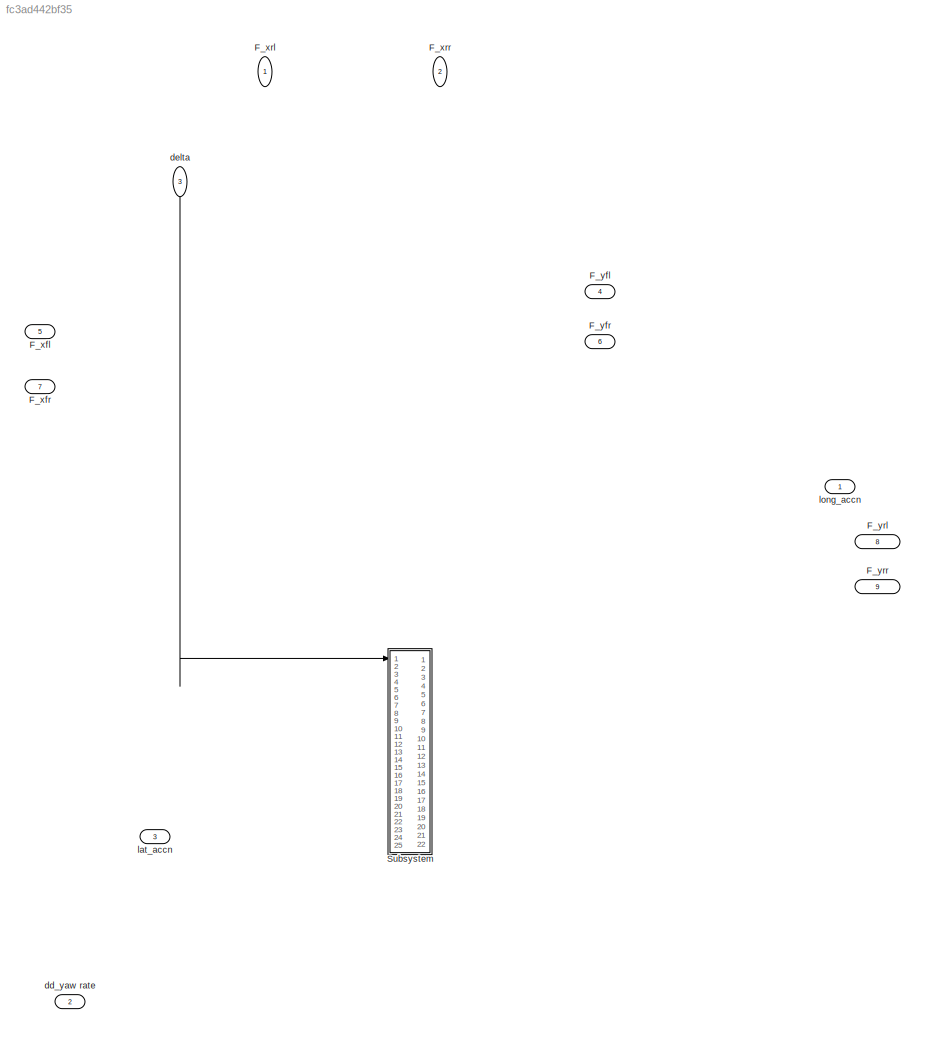
MODEL slx_fc3ad442bf35
KIND model
CONFIG AbsTol = auto
CONFIG FixedStep = auto
CONFIG MaxStep = auto
CONFIG MinStep = auto
CONFIG RelTol = 1e-3
CONFIG SampleTimeConstraint = Unconstrained
CONFIG Solver = ode45
CONFIG SolverMode = Auto
CONFIG SolverName = ode45
CONFIG StartTime = 0.0
CONFIG StopTime = 10.0
BLOCK [Inport] F_xfl
  IconDisplay = Port number
  Port = 5
BLOCK [Inport] F_xfr
  IconDisplay = Port number
  Port = 7
BLOCK [Inport] F_xrl
  IconDisplay = Port number
BLOCK [Inport] F_xrr
  IconDisplay = Port number
  Port = 2
BLOCK [Inport] F_yfl
  IconDisplay = Port number
  Port = 4
BLOCK [Inport] F_yfr
  IconDisplay = Port number
  Port = 6
BLOCK [Inport] F_yrl
  IconDisplay = Port number
  Port = 8
BLOCK [Inport] F_yrr
  IconDisplay = Port number
  Port = 9
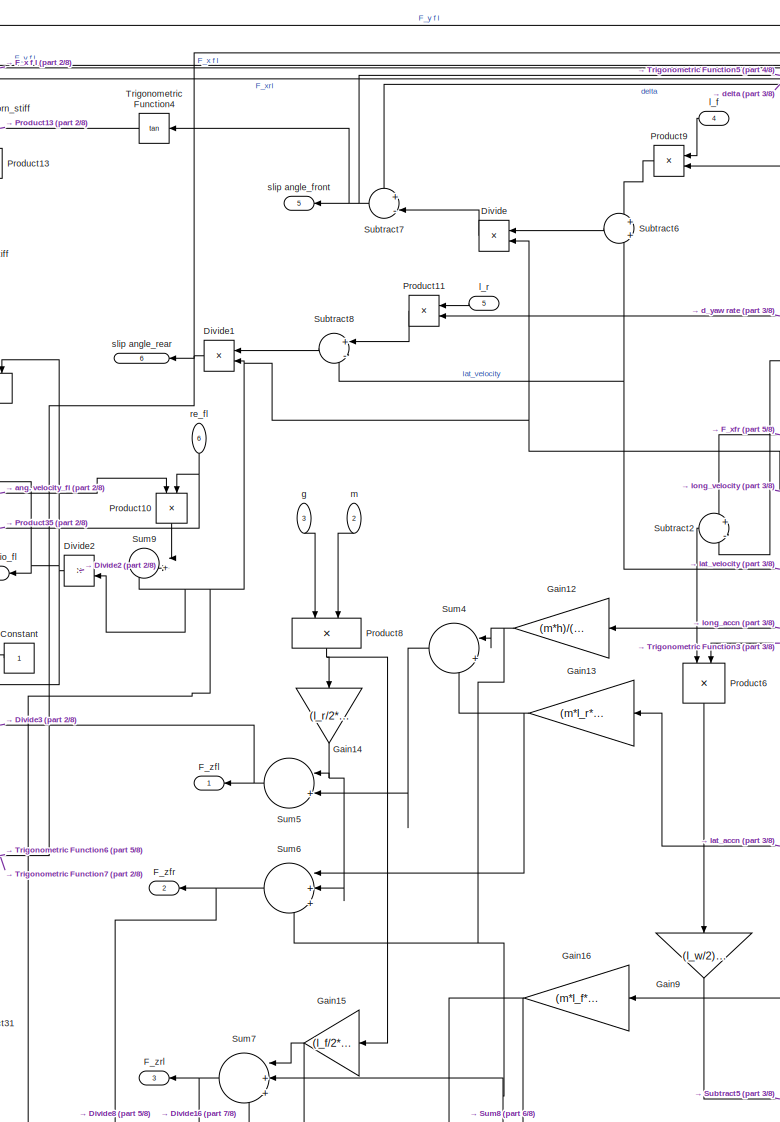
[diagram: Subsystem - part 1/8, top left region]
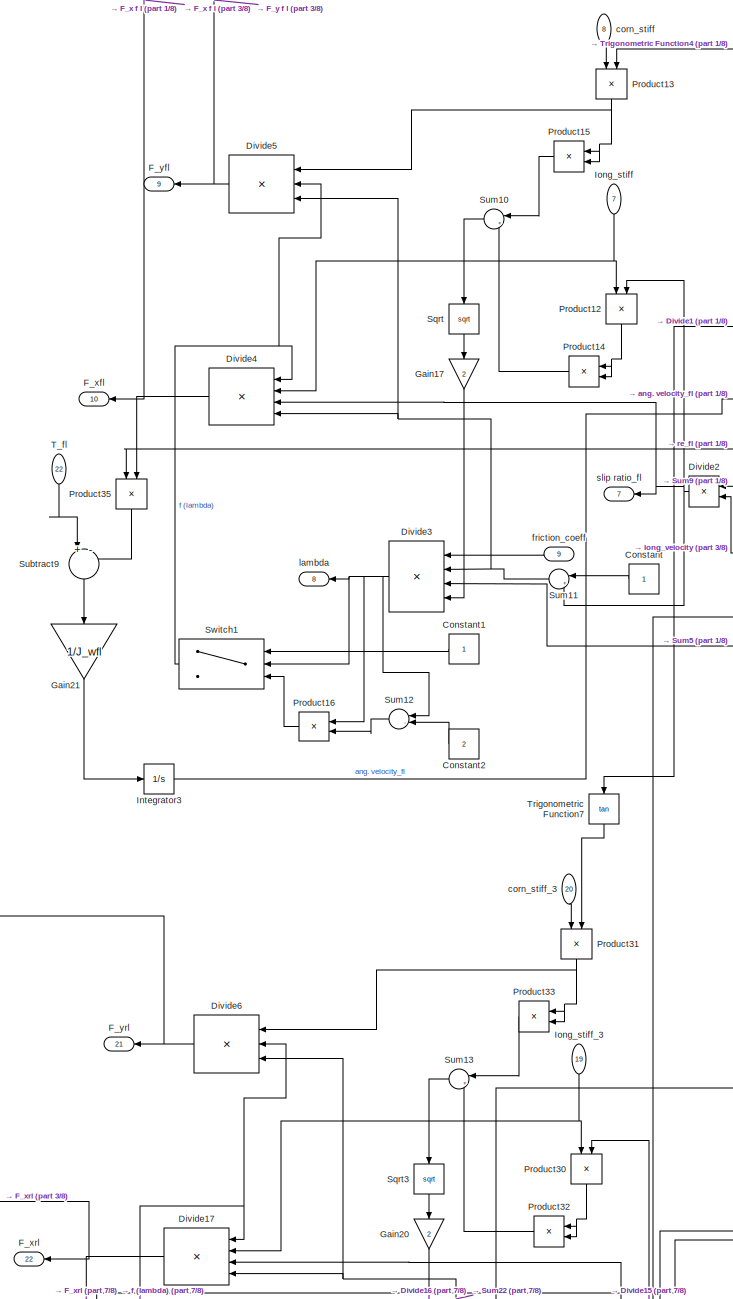
[diagram: Subsystem - part 2/8, middle left region]
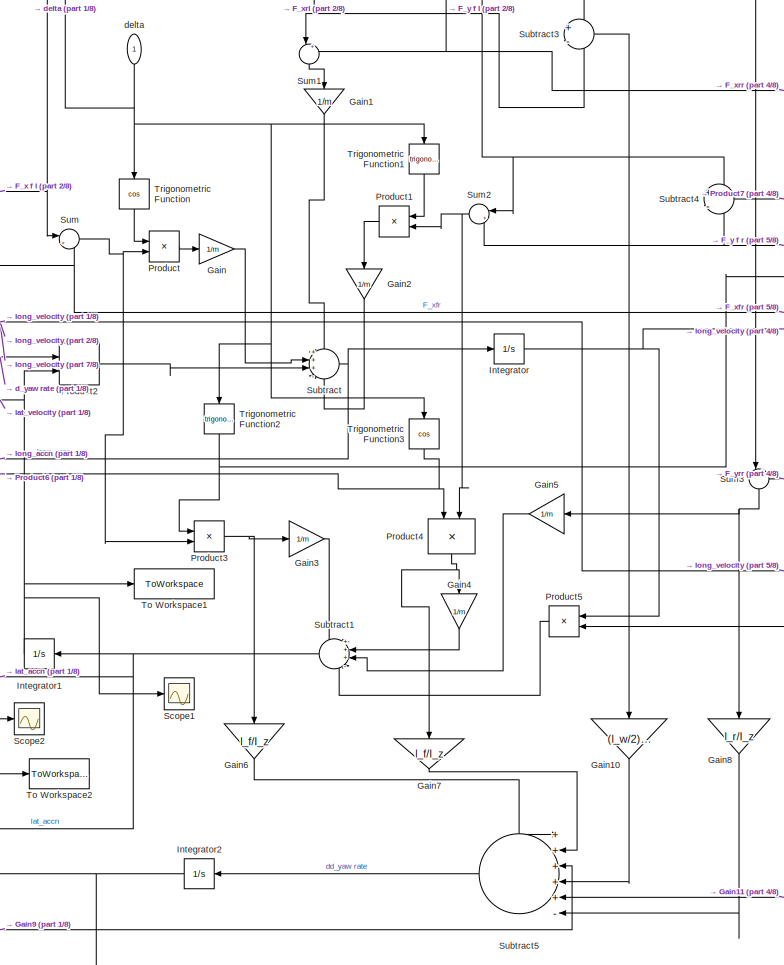
[diagram: Subsystem - part 3/8, central region]
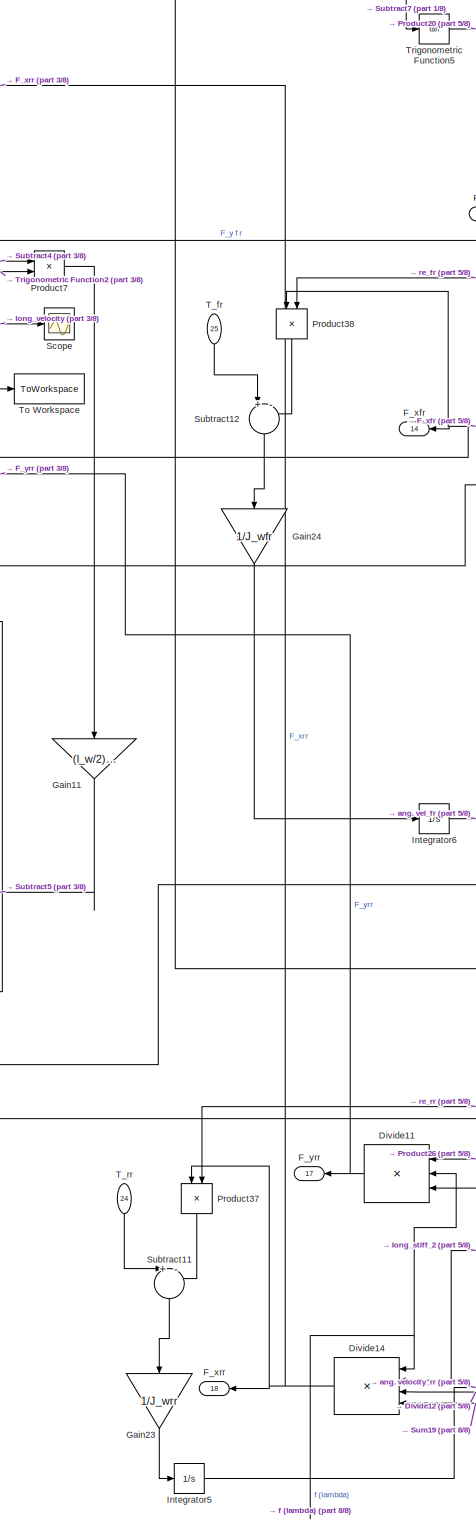
[diagram: Subsystem - part 4/8, right side, full height]
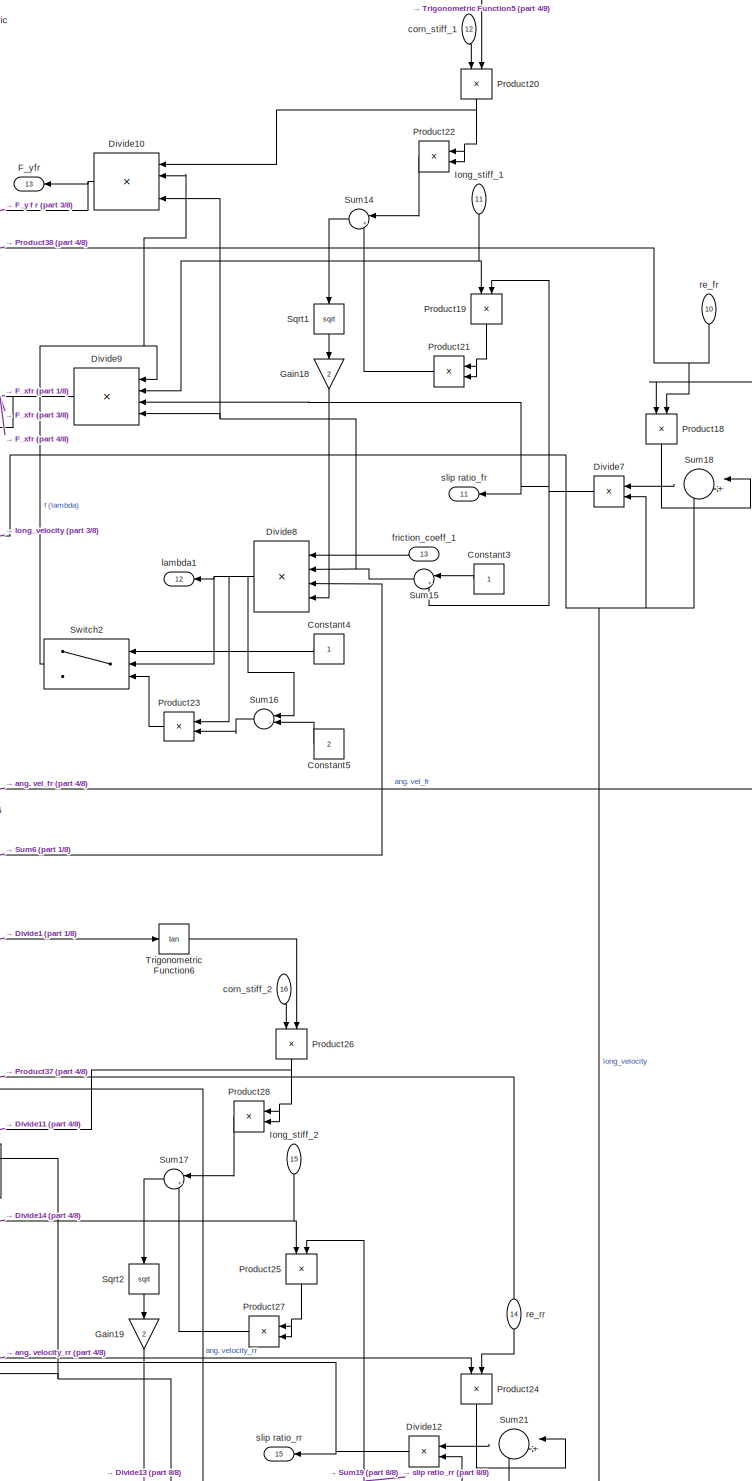
[diagram: Subsystem - part 5/8, right side, full height]
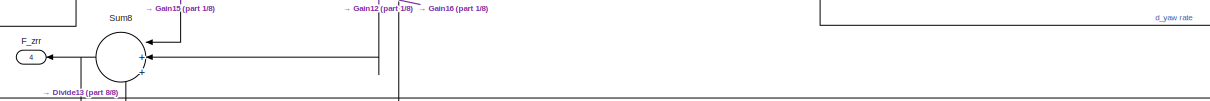
[diagram: Subsystem - part 6/8, central region]
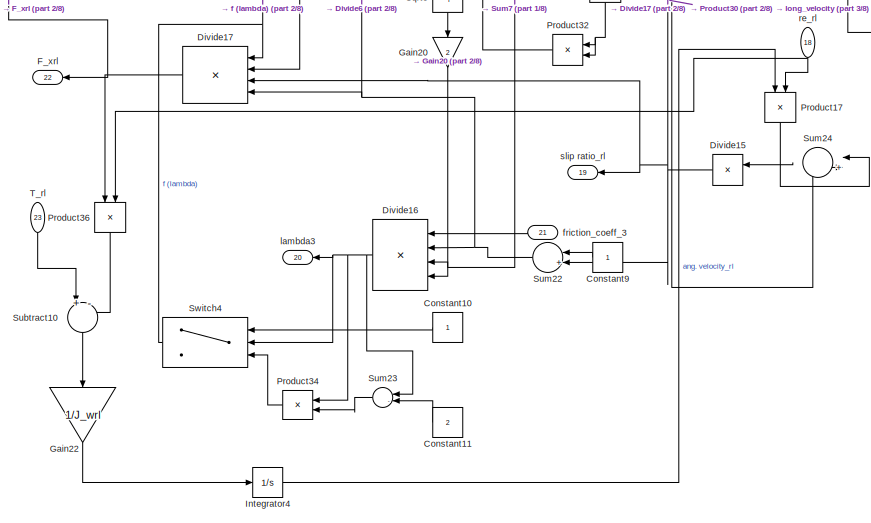
[diagram: Subsystem - part 7/8, bottom left region]
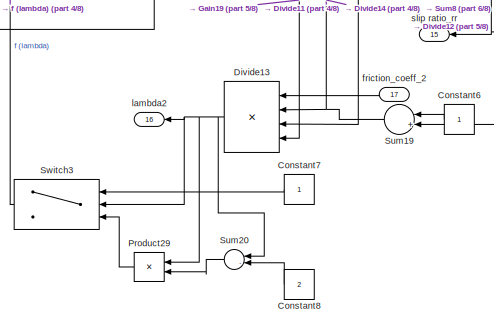
[diagram: Subsystem - part 8/8, bottom right region]
BLOCK [SubSystem] Subsystem
  Ports = [25, 22]
  RequestExecContextInheritance = off
BLOCK [Inport] Subsystem/      friction_coeff_3
  IconDisplay = Port number
  Port = 21
BLOCK [Constant] Subsystem/Constant
BLOCK [Constant] Subsystem/Constant1
BLOCK [Constant] Subsystem/Constant10
BLOCK [Constant] Subsystem/Constant11
  Value = 2
BLOCK [Constant] Subsystem/Constant2
  Value = 2
BLOCK [Constant] Subsystem/Constant3
BLOCK [Constant] Subsystem/Constant4
BLOCK [Constant] Subsystem/Constant5
  Value = 2
BLOCK [Constant] Subsystem/Constant6
BLOCK [Constant] Subsystem/Constant7
BLOCK [Constant] Subsystem/Constant8
  Value = 2
BLOCK [Constant] Subsystem/Constant9
BLOCK [Product] Subsystem/Divide
  InputSameDT = off
  Inputs = */
  OutDataTypeStr = Inherit: Inherit via internal rule
  Ports = [2, 1]
  RndMeth = Floor
  SaturateOnIntegerOverflow = off
BLOCK [Product] Subsystem/Divide1
  InputSameDT = off
  Inputs = */
  OutDataTypeStr = Inherit: Inherit via internal rule
  Ports = [2, 1]
  RndMeth = Floor
  SaturateOnIntegerOverflow = off
BLOCK [Product] Subsystem/Divide10
  InputSameDT = off
  Inputs = ***/
  OutDataTypeStr = Inherit: Inherit via internal rule
  Ports = [4, 1]
  RndMeth = Floor
  SaturateOnIntegerOverflow = off
BLOCK [Product] Subsystem/Divide11
  InputSameDT = off
  Inputs = **/
  OutDataTypeStr = Inherit: Inherit via internal rule
  Ports = [3, 1]
  RndMeth = Floor
  SaturateOnIntegerOverflow = off
BLOCK [Product] Subsystem/Divide12
  InputSameDT = off
  Inputs = */
  OutDataTypeStr = Inherit: Inherit via internal rule
  Ports = [2, 1]
  RndMeth = Floor
  SaturateOnIntegerOverflow = off
BLOCK [Product] Subsystem/Divide13
  InputSameDT = off
  Inputs = ***/
  OutDataTypeStr = Inherit: Inherit via internal rule
  Ports = [4, 1]
  RndMeth = Floor
  SaturateOnIntegerOverflow = off
BLOCK [Product] Subsystem/Divide14
  InputSameDT = off
  Inputs = ***/
  OutDataTypeStr = Inherit: Inherit via internal rule
  Ports = [4, 1]
  RndMeth = Floor
  SaturateOnIntegerOverflow = off
BLOCK [Product] Subsystem/Divide15
  InputSameDT = off
  Inputs = */
  OutDataTypeStr = Inherit: Inherit via internal rule
  Ports = [2, 1]
  RndMeth = Floor
  SaturateOnIntegerOverflow = off
BLOCK [Product] Subsystem/Divide16
  InputSameDT = off
  Inputs = ***/
  OutDataTypeStr = Inherit: Inherit via internal rule
  Ports = [4, 1]
  RndMeth = Floor
  SaturateOnIntegerOverflow = off
BLOCK [Product] Subsystem/Divide17
  InputSameDT = off
  Inputs = ***/
  OutDataTypeStr = Inherit: Inherit via internal rule
  Ports = [4, 1]
  RndMeth = Floor
  SaturateOnIntegerOverflow = off
BLOCK [Product] Subsystem/Divide2
  InputSameDT = off
  Inputs = */
  OutDataTypeStr = Inherit: Inherit via internal rule
  Ports = [2, 1]
  RndMeth = Floor
  SaturateOnIntegerOverflow = off
BLOCK [Product] Subsystem/Divide3
  InputSameDT = off
  Inputs = ***/
  OutDataTypeStr = Inherit: Inherit via internal rule
  Ports = [4, 1]
  RndMeth = Floor
  SaturateOnIntegerOverflow = off
BLOCK [Product] Subsystem/Divide4
  InputSameDT = off
  Inputs = ***/
  OutDataTypeStr = Inherit: Inherit via internal rule
  Ports = [4, 1]
  RndMeth = Floor
  SaturateOnIntegerOverflow = off
BLOCK [Product] Subsystem/Divide5
  InputSameDT = off
  Inputs = **/
  OutDataTypeStr = Inherit: Inherit via internal rule
  Ports = [3, 1]
  RndMeth = Floor
  SaturateOnIntegerOverflow = off
BLOCK [Product] Subsystem/Divide6
  InputSameDT = off
  Inputs = **/
  OutDataTypeStr = Inherit: Inherit via internal rule
  Ports = [3, 1]
  RndMeth = Floor
  SaturateOnIntegerOverflow = off
BLOCK [Product] Subsystem/Divide7
  InputSameDT = off
  Inputs = */
  OutDataTypeStr = Inherit: Inherit via internal rule
  Ports = [2, 1]
  RndMeth = Floor
  SaturateOnIntegerOverflow = off
BLOCK [Product] Subsystem/Divide8
  InputSameDT = off
  Inputs = ***/
  OutDataTypeStr = Inherit: Inherit via internal rule
  Ports = [4, 1]
  RndMeth = Floor
  SaturateOnIntegerOverflow = off
BLOCK [Product] Subsystem/Divide9
  InputSameDT = off
  Inputs = ***/
  OutDataTypeStr = Inherit: Inherit via internal rule
  Ports = [4, 1]
  RndMeth = Floor
  SaturateOnIntegerOverflow = off
BLOCK [Outport] Subsystem/F_xfl 
  IconDisplay = Port number
  Port = 10
BLOCK [Outport] Subsystem/F_xfr
  IconDisplay = Port number
  Port = 14
BLOCK [Outport] Subsystem/F_xrl 
  IconDisplay = Port number
  Port = 22
BLOCK [Outport] Subsystem/F_xrr
  IconDisplay = Port number
  Port = 18
BLOCK [Outport] Subsystem/F_yfl 
  IconDisplay = Port number
  Port = 9
BLOCK [Outport] Subsystem/F_yfr
  IconDisplay = Port number
  Port = 13
BLOCK [Outport] Subsystem/F_yrl
  IconDisplay = Port number
  Port = 21
BLOCK [Outport] Subsystem/F_yrr
  IconDisplay = Port number
  Port = 17
BLOCK [Outport] Subsystem/F_zfl
  IconDisplay = Port number
BLOCK [Outport] Subsystem/F_zfr
  IconDisplay = Port number
  Port = 2
BLOCK [Outport] Subsystem/F_zrl
  IconDisplay = Port number
  Port = 3
BLOCK [Outport] Subsystem/F_zrr
  IconDisplay = Port number
  Port = 4
BLOCK [Gain] Subsystem/Gain
  Gain = 1/m
  OutDataTypeStr = Inherit: Inherit via internal rule
  ParamDataTypeStr = Inherit: Inherit via internal rule
  SaturateOnIntegerOverflow = off
BLOCK [Gain] Subsystem/Gain1
  Gain = 1/m
  OutDataTypeStr = Inherit: Inherit via internal rule
  ParamDataTypeStr = Inherit: Inherit via internal rule
  SaturateOnIntegerOverflow = off
BLOCK [Gain] Subsystem/Gain10
  Gain = (l_w/2)/I_z
  OutDataTypeStr = Inherit: Inherit via internal rule
  ParamDataTypeStr = Inherit: Inherit via internal rule
  SaturateOnIntegerOverflow = off
BLOCK [Gain] Subsystem/Gain11
  Gain = (l_w/2)/I_z
  OutDataTypeStr = Inherit: Inherit via internal rule
  ParamDataTypeStr = Inherit: Inherit via internal rule
  SaturateOnIntegerOverflow = off
BLOCK [Gain] Subsystem/Gain12
  Gain = (m*h)/(2*l)
  OutDataTypeStr = Inherit: Inherit via internal rule
  ParamDataTypeStr = Inherit: Inherit via internal rule
  SaturateOnIntegerOverflow = off
BLOCK [Gain] Subsystem/Gain13
  Gain = (m*l_r*h)/(l*l_w)
  OutDataTypeStr = Inherit: Inherit via internal rule
  ParamDataTypeStr = Inherit: Inherit via internal rule
  SaturateOnIntegerOverflow = off
BLOCK [Gain] Subsystem/Gain14
  Gain = (l_r/2*l)
  OutDataTypeStr = Inherit: Inherit via internal rule
  ParamDataTypeStr = Inherit: Inherit via internal rule
  SaturateOnIntegerOverflow = off
BLOCK [Gain] Subsystem/Gain15
  Gain = (l_f/2*l)
  OutDataTypeStr = Inherit: Inherit via internal rule
  ParamDataTypeStr = Inherit: Inherit via internal rule
  SaturateOnIntegerOverflow = off
BLOCK [Gain] Subsystem/Gain16
  Gain = (m*l_f*h)/(l*l_w)
  OutDataTypeStr = Inherit: Inherit via internal rule
  ParamDataTypeStr = Inherit: Inherit via internal rule
  SaturateOnIntegerOverflow = off
BLOCK [Gain] Subsystem/Gain17
  Gain = 2
  OutDataTypeStr = Inherit: Inherit via internal rule
  ParamDataTypeStr = Inherit: Inherit via internal rule
  SaturateOnIntegerOverflow = off
BLOCK [Gain] Subsystem/Gain18
  Gain = 2
  OutDataTypeStr = Inherit: Inherit via internal rule
  ParamDataTypeStr = Inherit: Inherit via internal rule
  SaturateOnIntegerOverflow = off
BLOCK [Gain] Subsystem/Gain19
  Gain = 2
  OutDataTypeStr = Inherit: Inherit via internal rule
  ParamDataTypeStr = Inherit: Inherit via internal rule
  SaturateOnIntegerOverflow = off
BLOCK [Gain] Subsystem/Gain2
  Gain = 1/m
  OutDataTypeStr = Inherit: Inherit via internal rule
  ParamDataTypeStr = Inherit: Inherit via internal rule
  SaturateOnIntegerOverflow = off
BLOCK [Gain] Subsystem/Gain20
  Gain = 2
  OutDataTypeStr = Inherit: Inherit via internal rule
  ParamDataTypeStr = Inherit: Inherit via internal rule
  SaturateOnIntegerOverflow = off
BLOCK [Gain] Subsystem/Gain21
  Gain = 1/J_wfl
  OutDataTypeStr = Inherit: Inherit via internal rule
  ParamDataTypeStr = Inherit: Inherit via internal rule
  SaturateOnIntegerOverflow = off
BLOCK [Gain] Subsystem/Gain22
  Gain = 1/J_wrl
  OutDataTypeStr = Inherit: Inherit via internal rule
  ParamDataTypeStr = Inherit: Inherit via internal rule
  SaturateOnIntegerOverflow = off
BLOCK [Gain] Subsystem/Gain23
  Gain = 1/J_wrr
  OutDataTypeStr = Inherit: Inherit via internal rule
  ParamDataTypeStr = Inherit: Inherit via internal rule
  SaturateOnIntegerOverflow = off
BLOCK [Gain] Subsystem/Gain24
  Gain = 1/J_wfr
  OutDataTypeStr = Inherit: Inherit via internal rule
  ParamDataTypeStr = Inherit: Inherit via internal rule
  SaturateOnIntegerOverflow = off
BLOCK [Gain] Subsystem/Gain3
  Gain = 1/m
  OutDataTypeStr = Inherit: Inherit via internal rule
  ParamDataTypeStr = Inherit: Inherit via internal rule
  SaturateOnIntegerOverflow = off
BLOCK [Gain] Subsystem/Gain4
  Gain = 1/m
  OutDataTypeStr = Inherit: Inherit via internal rule
  ParamDataTypeStr = Inherit: Inherit via internal rule
  SaturateOnIntegerOverflow = off
BLOCK [Gain] Subsystem/Gain5
  Gain = 1/m
  OutDataTypeStr = Inherit: Inherit via internal rule
  ParamDataTypeStr = Inherit: Inherit via internal rule
  SaturateOnIntegerOverflow = off
BLOCK [Gain] Subsystem/Gain6
  Gain = l_f/I_z
  OutDataTypeStr = Inherit: Inherit via internal rule
  ParamDataTypeStr = Inherit: Inherit via internal rule
  SaturateOnIntegerOverflow = off
BLOCK [Gain] Subsystem/Gain7
  Gain = l_f/I_z
  OutDataTypeStr = Inherit: Inherit via internal rule
  ParamDataTypeStr = Inherit: Inherit via internal rule
  SaturateOnIntegerOverflow = off
BLOCK [Gain] Subsystem/Gain8
  Gain = l_r/I_z
  OutDataTypeStr = Inherit: Inherit via internal rule
  ParamDataTypeStr = Inherit: Inherit via internal rule
  SaturateOnIntegerOverflow = off
BLOCK [Gain] Subsystem/Gain9
  Gain = (l_w/2)/I_z
  OutDataTypeStr = Inherit: Inherit via internal rule
  ParamDataTypeStr = Inherit: Inherit via internal rule
  SaturateOnIntegerOverflow = off
BLOCK [Integrator] Subsystem/Integrator
  Ports = [1, 1]
BLOCK [Integrator] Subsystem/Integrator1
  Ports = [1, 1]
BLOCK [Integrator] Subsystem/Integrator2
  Ports = [1, 1]
BLOCK [Integrator] Subsystem/Integrator3
  Ports = [1, 1]
BLOCK [Integrator] Subsystem/Integrator4
  Ports = [1, 1]
BLOCK [Integrator] Subsystem/Integrator5
  Ports = [1, 1]
BLOCK [Integrator] Subsystem/Integrator6
  Ports = [1, 1]
BLOCK [Inport] Subsystem/Iong_stiff 
  IconDisplay = Port number
  Port = 7
BLOCK [Inport] Subsystem/Iong_stiff_1
  IconDisplay = Port number
  Port = 11
BLOCK [Inport] Subsystem/Iong_stiff_2
  IconDisplay = Port number
  Port = 15
BLOCK [Inport] Subsystem/Iong_stiff_3
  IconDisplay = Port number
  Port = 19
BLOCK [Product] Subsystem/Product
  InputSameDT = off
  OutDataTypeStr = Inherit: Inherit via internal rule
  Ports = [2, 1]
  RndMeth = Floor
  SaturateOnIntegerOverflow = off
BLOCK [Product] Subsystem/Product1
  InputSameDT = off
  OutDataTypeStr = Inherit: Inherit via internal rule
  Ports = [2, 1]
  RndMeth = Floor
  SaturateOnIntegerOverflow = off
BLOCK [Product] Subsystem/Product10
  InputSameDT = off
  OutDataTypeStr = Inherit: Inherit via internal rule
  Ports = [2, 1]
  RndMeth = Floor
  SaturateOnIntegerOverflow = off
BLOCK [Product] Subsystem/Product11
  InputSameDT = off
  OutDataTypeStr = Inherit: Inherit via internal rule
  Ports = [2, 1]
  RndMeth = Floor
  SaturateOnIntegerOverflow = off
BLOCK [Product] Subsystem/Product12
  InputSameDT = off
  OutDataTypeStr = Inherit: Inherit via internal rule
  Ports = [2, 1]
  RndMeth = Floor
  SaturateOnIntegerOverflow = off
BLOCK [Product] Subsystem/Product13
  InputSameDT = off
  OutDataTypeStr = Inherit: Inherit via internal rule
  Ports = [2, 1]
  RndMeth = Floor
  SaturateOnIntegerOverflow = off
BLOCK [Product] Subsystem/Product14
  InputSameDT = off
  OutDataTypeStr = Inherit: Inherit via internal rule
  Ports = [2, 1]
  RndMeth = Floor
  SaturateOnIntegerOverflow = off
BLOCK [Product] Subsystem/Product15
  InputSameDT = off
  OutDataTypeStr = Inherit: Inherit via internal rule
  Ports = [2, 1]
  RndMeth = Floor
  SaturateOnIntegerOverflow = off
BLOCK [Product] Subsystem/Product16
  InputSameDT = off
  OutDataTypeStr = Inherit: Inherit via internal rule
  Ports = [2, 1]
  RndMeth = Floor
  SaturateOnIntegerOverflow = off
BLOCK [Product] Subsystem/Product17
  InputSameDT = off
  OutDataTypeStr = Inherit: Inherit via internal rule
  Ports = [2, 1]
  RndMeth = Floor
  SaturateOnIntegerOverflow = off
BLOCK [Product] Subsystem/Product18
  InputSameDT = off
  OutDataTypeStr = Inherit: Inherit via internal rule
  Ports = [2, 1]
  RndMeth = Floor
  SaturateOnIntegerOverflow = off
BLOCK [Product] Subsystem/Product19
  InputSameDT = off
  OutDataTypeStr = Inherit: Inherit via internal rule
  Ports = [2, 1]
  RndMeth = Floor
  SaturateOnIntegerOverflow = off
BLOCK [Product] Subsystem/Product2
  InputSameDT = off
  OutDataTypeStr = Inherit: Inherit via internal rule
  Ports = [2, 1]
  RndMeth = Floor
  SaturateOnIntegerOverflow = off
BLOCK [Product] Subsystem/Product20
  InputSameDT = off
  OutDataTypeStr = Inherit: Inherit via internal rule
  Ports = [2, 1]
  RndMeth = Floor
  SaturateOnIntegerOverflow = off
BLOCK [Product] Subsystem/Product21
  InputSameDT = off
  OutDataTypeStr = Inherit: Inherit via internal rule
  Ports = [2, 1]
  RndMeth = Floor
  SaturateOnIntegerOverflow = off
BLOCK [Product] Subsystem/Product22
  InputSameDT = off
  OutDataTypeStr = Inherit: Inherit via internal rule
  Ports = [2, 1]
  RndMeth = Floor
  SaturateOnIntegerOverflow = off
BLOCK [Product] Subsystem/Product23
  InputSameDT = off
  OutDataTypeStr = Inherit: Inherit via internal rule
  Ports = [2, 1]
  RndMeth = Floor
  SaturateOnIntegerOverflow = off
BLOCK [Product] Subsystem/Product24
  InputSameDT = off
  OutDataTypeStr = Inherit: Inherit via internal rule
  Ports = [2, 1]
  RndMeth = Floor
  SaturateOnIntegerOverflow = off
BLOCK [Product] Subsystem/Product25
  InputSameDT = off
  OutDataTypeStr = Inherit: Inherit via internal rule
  Ports = [2, 1]
  RndMeth = Floor
  SaturateOnIntegerOverflow = off
BLOCK [Product] Subsystem/Product26
  InputSameDT = off
  OutDataTypeStr = Inherit: Inherit via internal rule
  Ports = [2, 1]
  RndMeth = Floor
  SaturateOnIntegerOverflow = off
BLOCK [Product] Subsystem/Product27
  InputSameDT = off
  OutDataTypeStr = Inherit: Inherit via internal rule
  Ports = [2, 1]
  RndMeth = Floor
  SaturateOnIntegerOverflow = off
BLOCK [Product] Subsystem/Product28
  InputSameDT = off
  OutDataTypeStr = Inherit: Inherit via internal rule
  Ports = [2, 1]
  RndMeth = Floor
  SaturateOnIntegerOverflow = off
BLOCK [Product] Subsystem/Product29
  InputSameDT = off
  OutDataTypeStr = Inherit: Inherit via internal rule
  Ports = [2, 1]
  RndMeth = Floor
  SaturateOnIntegerOverflow = off
BLOCK [Product] Subsystem/Product3
  InputSameDT = off
  OutDataTypeStr = Inherit: Inherit via internal rule
  Ports = [2, 1]
  RndMeth = Floor
  SaturateOnIntegerOverflow = off
BLOCK [Product] Subsystem/Product30
  InputSameDT = off
  OutDataTypeStr = Inherit: Inherit via internal rule
  Ports = [2, 1]
  RndMeth = Floor
  SaturateOnIntegerOverflow = off
BLOCK [Product] Subsystem/Product31
  InputSameDT = off
  OutDataTypeStr = Inherit: Inherit via internal rule
  Ports = [2, 1]
  RndMeth = Floor
  SaturateOnIntegerOverflow = off
BLOCK [Product] Subsystem/Product32
  InputSameDT = off
  OutDataTypeStr = Inherit: Inherit via internal rule
  Ports = [2, 1]
  RndMeth = Floor
  SaturateOnIntegerOverflow = off
BLOCK [Product] Subsystem/Product33
  InputSameDT = off
  OutDataTypeStr = Inherit: Inherit via internal rule
  Ports = [2, 1]
  RndMeth = Floor
  SaturateOnIntegerOverflow = off
BLOCK [Product] Subsystem/Product34
  InputSameDT = off
  OutDataTypeStr = Inherit: Inherit via internal rule
  Ports = [2, 1]
  RndMeth = Floor
  SaturateOnIntegerOverflow = off
BLOCK [Product] Subsystem/Product35
  InputSameDT = off
  OutDataTypeStr = Inherit: Inherit via internal rule
  Ports = [2, 1]
  RndMeth = Floor
  SaturateOnIntegerOverflow = off
BLOCK [Product] Subsystem/Product36
  InputSameDT = off
  OutDataTypeStr = Inherit: Inherit via internal rule
  Ports = [2, 1]
  RndMeth = Floor
  SaturateOnIntegerOverflow = off
BLOCK [Product] Subsystem/Product37
  InputSameDT = off
  OutDataTypeStr = Inherit: Inherit via internal rule
  Ports = [2, 1]
  RndMeth = Floor
  SaturateOnIntegerOverflow = off
BLOCK [Product] Subsystem/Product38
  InputSameDT = off
  OutDataTypeStr = Inherit: Inherit via internal rule
  Ports = [2, 1]
  RndMeth = Floor
  SaturateOnIntegerOverflow = off
BLOCK [Product] Subsystem/Product4
  InputSameDT = off
  OutDataTypeStr = Inherit: Inherit via internal rule
  Ports = [2, 1]
  RndMeth = Floor
  SaturateOnIntegerOverflow = off
BLOCK [Product] Subsystem/Product5
  InputSameDT = off
  OutDataTypeStr = Inherit: Inherit via internal rule
  Ports = [2, 1]
  RndMeth = Floor
  SaturateOnIntegerOverflow = off
BLOCK [Product] Subsystem/Product6
  InputSameDT = off
  OutDataTypeStr = Inherit: Inherit via internal rule
  Ports = [2, 1]
  RndMeth = Floor
  SaturateOnIntegerOverflow = off
BLOCK [Product] Subsystem/Product7
  InputSameDT = off
  OutDataTypeStr = Inherit: Inherit via internal rule
  Ports = [2, 1]
  RndMeth = Floor
  SaturateOnIntegerOverflow = off
BLOCK [Product] Subsystem/Product8
  InputSameDT = off
  OutDataTypeStr = Inherit: Inherit via internal rule
  Ports = [2, 1]
  RndMeth = Floor
  SaturateOnIntegerOverflow = off
BLOCK [Product] Subsystem/Product9
  InputSameDT = off
  OutDataTypeStr = Inherit: Inherit via internal rule
  Ports = [2, 1]
  RndMeth = Floor
  SaturateOnIntegerOverflow = off
BLOCK [Scope] Subsystem/Scope
  Floating = off
  NumInputPorts = 1
  Ports = [1]
BLOCK [Scope] Subsystem/Scope1
  Floating = off
  NumInputPorts = 1
  Ports = [1]
  SaveName = ScopeData1
BLOCK [Scope] Subsystem/Scope2
  Floating = off
  NumInputPorts = 1
  Ports = [1]
  SaveName = ScopeData2
BLOCK [Sqrt] Subsystem/Sqrt
BLOCK [Sqrt] Subsystem/Sqrt1
BLOCK [Sqrt] Subsystem/Sqrt2
BLOCK [Sqrt] Subsystem/Sqrt3
BLOCK [Sum] Subsystem/Subtract
  IconShape = round
  InputSameDT = off
  Inputs = +++-
  OutDataTypeStr = Inherit: Inherit via internal rule
  Ports = [4, 1]
  SaturateOnIntegerOverflow = off
BLOCK [Sum] Subsystem/Subtract1
  IconShape = round
  InputSameDT = off
  Inputs = +++-
  OutDataTypeStr = Inherit: Inherit via internal rule
  Ports = [4, 1]
  SaturateOnIntegerOverflow = off
BLOCK [Sum] Subsystem/Subtract10
  IconShape = round
  InputSameDT = off
  Inputs = +-
  OutDataTypeStr = Inherit: Inherit via internal rule
  Ports = [2, 1]
  SaturateOnIntegerOverflow = off
BLOCK [Sum] Subsystem/Subtract11
  IconShape = round
  InputSameDT = off
  Inputs = +-
  OutDataTypeStr = Inherit: Inherit via internal rule
  Ports = [2, 1]
  SaturateOnIntegerOverflow = off
BLOCK [Sum] Subsystem/Subtract12
  IconShape = round
  InputSameDT = off
  Inputs = +-
  OutDataTypeStr = Inherit: Inherit via internal rule
  Ports = [2, 1]
  SaturateOnIntegerOverflow = off
BLOCK [Sum] Subsystem/Subtract2
  IconShape = round
  InputSameDT = off
  Inputs = +-
  OutDataTypeStr = Inherit: Inherit via internal rule
  Ports = [2, 1]
  SaturateOnIntegerOverflow = off
BLOCK [Sum] Subsystem/Subtract3
  IconShape = round
  InputSameDT = off
  Inputs = +-
  OutDataTypeStr = Inherit: Inherit via internal rule
  Ports = [2, 1]
  SaturateOnIntegerOverflow = off
BLOCK [Sum] Subsystem/Subtract4
  IconShape = round
  InputSameDT = off
  Inputs = +-
  OutDataTypeStr = Inherit: Inherit via internal rule
  Ports = [2, 1]
  SaturateOnIntegerOverflow = off
BLOCK [Sum] Subsystem/Subtract5
  IconShape = round
  InputSameDT = off
  Inputs = +++++-
  OutDataTypeStr = Inherit: Inherit via internal rule
  Ports = [6, 1]
  SaturateOnIntegerOverflow = off
BLOCK [Sum] Subsystem/Subtract6
  IconShape = round
  InputSameDT = off
  OutDataTypeStr = Inherit: Inherit via internal rule
  Ports = [2, 1]
  SaturateOnIntegerOverflow = off
BLOCK [Sum] Subsystem/Subtract7
  IconShape = round
  InputSameDT = off
  Inputs = +-
  OutDataTypeStr = Inherit: Inherit via internal rule
  Ports = [2, 1]
  SaturateOnIntegerOverflow = off
BLOCK [Sum] Subsystem/Subtract8
  IconShape = round
  InputSameDT = off
  Inputs = +-
  OutDataTypeStr = Inherit: Inherit via internal rule
  Ports = [2, 1]
  SaturateOnIntegerOverflow = off
BLOCK [Sum] Subsystem/Subtract9
  IconShape = round
  InputSameDT = off
  Inputs = +-
  OutDataTypeStr = Inherit: Inherit via internal rule
  Ports = [2, 1]
  SaturateOnIntegerOverflow = off
BLOCK [Sum] Subsystem/Sum
  IconShape = round
  InputSameDT = off
  Inputs = |++
  OutDataTypeStr = Inherit: Inherit via internal rule
  Ports = [2, 1]
  SaturateOnIntegerOverflow = off
BLOCK [Sum] Subsystem/Sum1
  IconShape = round
  InputSameDT = off
  Inputs = |++
  OutDataTypeStr = Inherit: Inherit via internal rule
  Ports = [2, 1]
  SaturateOnIntegerOverflow = off
BLOCK [Sum] Subsystem/Sum10
  IconShape = round
  InputSameDT = off
  Inputs = |++
  OutDataTypeStr = Inherit: Inherit via internal rule
  Ports = [2, 1]
  SaturateOnIntegerOverflow = off
BLOCK [Sum] Subsystem/Sum11
  IconShape = round
  InputSameDT = off
  Inputs = |++
  OutDataTypeStr = Inherit: Inherit via internal rule
  Ports = [2, 1]
  SaturateOnIntegerOverflow = off
BLOCK [Sum] Subsystem/Sum12
  IconShape = round
  InputSameDT = off
  Inputs = |-+
  OutDataTypeStr = Inherit: Inherit via internal rule
  Ports = [2, 1]
  SaturateOnIntegerOverflow = off
BLOCK [Sum] Subsystem/Sum13
  IconShape = round
  InputSameDT = off
  Inputs = |++
  OutDataTypeStr = Inherit: Inherit via internal rule
  Ports = [2, 1]
  SaturateOnIntegerOverflow = off
BLOCK [Sum] Subsystem/Sum14
  IconShape = round
  InputSameDT = off
  Inputs = |++
  OutDataTypeStr = Inherit: Inherit via internal rule
  Ports = [2, 1]
  SaturateOnIntegerOverflow = off
BLOCK [Sum] Subsystem/Sum15
  IconShape = round
  InputSameDT = off
  Inputs = |++
  OutDataTypeStr = Inherit: Inherit via internal rule
  Ports = [2, 1]
  SaturateOnIntegerOverflow = off
BLOCK [Sum] Subsystem/Sum16
  IconShape = round
  InputSameDT = off
  Inputs = |-+
  OutDataTypeStr = Inherit: Inherit via internal rule
  Ports = [2, 1]
  SaturateOnIntegerOverflow = off
BLOCK [Sum] Subsystem/Sum17
  IconShape = round
  InputSameDT = off
  Inputs = |++
  OutDataTypeStr = Inherit: Inherit via internal rule
  Ports = [2, 1]
  SaturateOnIntegerOverflow = off
BLOCK [Sum] Subsystem/Sum18
  IconShape = round
  InputSameDT = off
  Inputs = |+-
  OutDataTypeStr = Inherit: Inherit via internal rule
  Ports = [2, 1]
  SaturateOnIntegerOverflow = off
BLOCK [Sum] Subsystem/Sum19
  IconShape = round
  InputSameDT = off
  Inputs = |++
  OutDataTypeStr = Inherit: Inherit via internal rule
  Ports = [2, 1]
  SaturateOnIntegerOverflow = off
BLOCK [Sum] Subsystem/Sum2
  IconShape = round
  InputSameDT = off
  Inputs = |++
  OutDataTypeStr = Inherit: Inherit via internal rule
  Ports = [2, 1]
  SaturateOnIntegerOverflow = off
BLOCK [Sum] Subsystem/Sum20
  IconShape = round
  InputSameDT = off
  Inputs = |-+
  OutDataTypeStr = Inherit: Inherit via internal rule
  Ports = [2, 1]
  SaturateOnIntegerOverflow = off
BLOCK [Sum] Subsystem/Sum21
  IconShape = round
  InputSameDT = off
  Inputs = |+-
  OutDataTypeStr = Inherit: Inherit via internal rule
  Ports = [2, 1]
  SaturateOnIntegerOverflow = off
BLOCK [Sum] Subsystem/Sum22
  IconShape = round
  InputSameDT = off
  Inputs = |++
  OutDataTypeStr = Inherit: Inherit via internal rule
  Ports = [2, 1]
  SaturateOnIntegerOverflow = off
BLOCK [Sum] Subsystem/Sum23
  IconShape = round
  InputSameDT = off
  Inputs = |-+
  OutDataTypeStr = Inherit: Inherit via internal rule
  Ports = [2, 1]
  SaturateOnIntegerOverflow = off
BLOCK [Sum] Subsystem/Sum24
  IconShape = round
  InputSameDT = off
  Inputs = |+-
  OutDataTypeStr = Inherit: Inherit via internal rule
  Ports = [2, 1]
  SaturateOnIntegerOverflow = off
BLOCK [Sum] Subsystem/Sum3
  IconShape = round
  InputSameDT = off
  Inputs = |++
  OutDataTypeStr = Inherit: Inherit via internal rule
  Ports = [2, 1]
  SaturateOnIntegerOverflow = off
BLOCK [Sum] Subsystem/Sum4
  IconShape = round
  InputSameDT = off
  Inputs = |++
  OutDataTypeStr = Inherit: Inherit via internal rule
  Ports = [2, 1]
  SaturateOnIntegerOverflow = off
BLOCK [Sum] Subsystem/Sum5
  IconShape = round
  InputSameDT = off
  Inputs = |+-
  OutDataTypeStr = Inherit: Inherit via internal rule
  Ports = [2, 1]
  SaturateOnIntegerOverflow = off
BLOCK [Sum] Subsystem/Sum6
  IconShape = round
  InputSameDT = off
  Inputs = |++-
  OutDataTypeStr = Inherit: Inherit via internal rule
  Ports = [3, 1]
  SaturateOnIntegerOverflow = off
BLOCK [Sum] Subsystem/Sum7
  IconShape = round
  InputSameDT = off
  Inputs = |++-
  OutDataTypeStr = Inherit: Inherit via internal rule
  Ports = [3, 1]
  SaturateOnIntegerOverflow = off
BLOCK [Sum] Subsystem/Sum8
  IconShape = round
  InputSameDT = off
  Inputs = |+++
  OutDataTypeStr = Inherit: Inherit via internal rule
  Ports = [3, 1]
  SaturateOnIntegerOverflow = off
BLOCK [Sum] Subsystem/Sum9
  IconShape = round
  InputSameDT = off
  Inputs = |+-
  OutDataTypeStr = Inherit: Inherit via internal rule
  Ports = [2, 1]
  SaturateOnIntegerOverflow = off
BLOCK [Switch] Subsystem/Switch1
  InputSameDT = off
  SaturateOnIntegerOverflow = off
  Threshold = 1
BLOCK [Switch] Subsystem/Switch2
  InputSameDT = off
  SaturateOnIntegerOverflow = off
  Threshold = 1
BLOCK [Switch] Subsystem/Switch3
  InputSameDT = off
  SaturateOnIntegerOverflow = off
  Threshold = 1
BLOCK [Switch] Subsystem/Switch4
  InputSameDT = off
  SaturateOnIntegerOverflow = off
  Threshold = 1
BLOCK [Inport] Subsystem/T_fl
  IconDisplay = Port number
  Port = 22
BLOCK [Inport] Subsystem/T_fr 
  IconDisplay = Port number
  Port = 25
BLOCK [Inport] Subsystem/T_rl 
  IconDisplay = Port number
  Port = 23
BLOCK [Inport] Subsystem/T_rr 
  IconDisplay = Port number
  Port = 24
BLOCK [ToWorkspace] Subsystem/To Workspace
  FixptAsFi = on
  MaxDataPoints = inf
  Ports = [1]
  SampleTime = -1
  Save2DSignal = 3-D array (concatenate along third dimension)
  SaveFormat = Timeseries
  VariableName = long_velocity
BLOCK [ToWorkspace] Subsystem/To Workspace1
  FixptAsFi = on
  MaxDataPoints = inf
  Ports = [1]
  SampleTime = -1
  Save2DSignal = 3-D array (concatenate along third dimension)
  SaveFormat = Timeseries
  VariableName = lateral_velocity
BLOCK [ToWorkspace] Subsystem/To Workspace2
  FixptAsFi = on
  MaxDataPoints = inf
  Ports = [1]
  SampleTime = -1
  Save2DSignal = 3-D array (concatenate along third dimension)
  SaveFormat = Timeseries
  VariableName = yaw_rate
BLOCK [Trigonometry] Subsystem/Trigonometric Function
  Operator = cos
  Ports = [1, 1]
BLOCK [Trigonometry] Subsystem/Trigonometric Function1
  Ports = [1, 1]
BLOCK [Trigonometry] Subsystem/Trigonometric Function2
  Ports = [1, 1]
BLOCK [Trigonometry] Subsystem/Trigonometric Function3
  Operator = cos
  Ports = [1, 1]
BLOCK [Trigonometry] Subsystem/Trigonometric Function4
  Operator = tan
  Ports = [1, 1]
BLOCK [Trigonometry] Subsystem/Trigonometric Function5
  Operator = tan
  Ports = [1, 1]
BLOCK [Trigonometry] Subsystem/Trigonometric Function6
  Operator = tan
  Ports = [1, 1]
BLOCK [Trigonometry] Subsystem/Trigonometric Function7
  Operator = tan
  Ports = [1, 1]
BLOCK [Inport] Subsystem/corn_stiff
  IconDisplay = Port number
  Port = 8
BLOCK [Inport] Subsystem/corn_stiff_1 
  IconDisplay = Port number
  Port = 12
BLOCK [Inport] Subsystem/corn_stiff_2
  IconDisplay = Port number
  Port = 16
BLOCK [Inport] Subsystem/corn_stiff_3
  IconDisplay = Port number
  Port = 20
BLOCK [Inport] Subsystem/delta
  IconDisplay = Port number
BLOCK [Inport] Subsystem/friction_coeff
  IconDisplay = Port number
  Port = 9
BLOCK [Inport] Subsystem/friction_coeff_1
  IconDisplay = Port number
  Port = 13
BLOCK [Inport] Subsystem/friction_coeff_2
  IconDisplay = Port number
  Port = 17
BLOCK [Inport] Subsystem/g
  IconDisplay = Port number
  Port = 3
BLOCK [Inport] Subsystem/l_f
  IconDisplay = Port number
  Port = 4
BLOCK [Inport] Subsystem/l_r
  IconDisplay = Port number
  Port = 5
BLOCK [Outport] Subsystem/lambda
  IconDisplay = Port number
  Port = 8
BLOCK [Outport] Subsystem/lambda1
  IconDisplay = Port number
  Port = 12
BLOCK [Outport] Subsystem/lambda2
  IconDisplay = Port number
  Port = 16
BLOCK [Outport] Subsystem/lambda3
  IconDisplay = Port number
  Port = 20
BLOCK [Inport] Subsystem/m
  IconDisplay = Port number
  Port = 2
BLOCK [Inport] Subsystem/re_fl 
  IconDisplay = Port number
  Port = 6
BLOCK [Inport] Subsystem/re_fr 
  IconDisplay = Port number
  Port = 10
BLOCK [Inport] Subsystem/re_rl
  IconDisplay = Port number
  Port = 18
BLOCK [Inport] Subsystem/re_rr 
  IconDisplay = Port number
  Port = 14
BLOCK [Outport] Subsystem/slip angle_front
  IconDisplay = Port number
  Port = 5
BLOCK [Outport] Subsystem/slip angle_rear
  IconDisplay = Port number
  Port = 6
BLOCK [Outport] Subsystem/slip ratio_fl
  IconDisplay = Port number
  Port = 7
BLOCK [Outport] Subsystem/slip ratio_fr
  IconDisplay = Port number
  Port = 11
BLOCK [Outport] Subsystem/slip ratio_rl
  IconDisplay = Port number
  Port = 19
BLOCK [Outport] Subsystem/slip ratio_rr
  IconDisplay = Port number
  Port = 15
BLOCK [Outport] dd_yaw rate
  IconDisplay = Port number
  Port = 2
BLOCK [Inport] delta
  IconDisplay = Port number
  Port = 3
BLOCK [Outport] lat_accn
  IconDisplay = Port number
  Port = 3
BLOCK [Outport] long_accn
  IconDisplay = Port number
LINE Subsystem/      friction_coeff_3:1 -> Subsystem/Divide16:1
LINE Subsystem/Constant10:1 -> Subsystem/Switch4:1
LINE Subsystem/Constant11:1 -> Subsystem/Sum23:2
LINE Subsystem/Constant1:1 -> Subsystem/Switch1:1
LINE Subsystem/Constant2:1 -> Subsystem/Sum12:2
LINE Subsystem/Constant3:1 -> Subsystem/Sum15:1
LINE Subsystem/Constant4:1 -> Subsystem/Switch2:1
LINE Subsystem/Constant5:1 -> Subsystem/Sum16:2
LINE Subsystem/Constant6:1 -> Subsystem/Sum19:1
LINE Subsystem/Constant7:1 -> Subsystem/Switch3:1
LINE Subsystem/Constant8:1 -> Subsystem/Sum20:2
LINE Subsystem/Constant9:1 -> Subsystem/Sum22:1
LINE Subsystem/Constant:1 -> Subsystem/Sum11:1
NET Subsystem/Divide10:1 -> Subsystem/F_yfr:1, Subsystem/Subtract4:2, Subsystem/Sum2:2
NET Subsystem/Divide11:1 -> Subsystem/F_yrr:1, Subsystem/Sum3:2
NET Subsystem/Divide12:1 -> Subsystem/Divide14:3, Subsystem/Product25:2, Subsystem/Sum19:2, Subsystem/slip ratio_rr:1
NET Subsystem/Divide13:1 -> Subsystem/Product29:1, Subsystem/Sum20:1, Subsystem/Switch3:2, Subsystem/lambda2:1
NET Subsystem/Divide14:1 -> Subsystem/F_xrr:1, Subsystem/Product37:1, Subsystem/Subtract3:1, Subsystem/Sum1:2
NET Subsystem/Divide15:1 -> Subsystem/Divide17:3, Subsystem/Product30:2, Subsystem/Sum22:2, Subsystem/slip ratio_rl:1
NET Subsystem/Divide16:1 -> Subsystem/Product34:1, Subsystem/Sum23:1, Subsystem/Switch4:2, Subsystem/lambda3:1
NET Subsystem/Divide17:1 -> Subsystem/F_xrl :1, Subsystem/Product36:1, Subsystem/Subtract3:2, Subsystem/Sum1:1
NET Subsystem/Divide1:1 -> Subsystem/Trigonometric Function6:1, Subsystem/Trigonometric Function7:1, Subsystem/slip angle_rear:1
NET Subsystem/Divide2:1 -> Subsystem/Divide4:3, Subsystem/Product12:2, Subsystem/Sum11:2, Subsystem/slip ratio_fl:1
NET Subsystem/Divide3:1 -> Subsystem/Product16:1, Subsystem/Sum12:1, Subsystem/Switch1:2, Subsystem/lambda:1
NET Subsystem/Divide4:1 -> Subsystem/F_xfl :1, Subsystem/Product35:2, Subsystem/Subtract2:2, Subsystem/Sum:1
NET Subsystem/Divide5:1 -> Subsystem/F_yfl :1, Subsystem/Subtract4:1, Subsystem/Sum2:1
NET Subsystem/Divide6:1 -> Subsystem/F_yrl:1, Subsystem/Sum3:1
NET Subsystem/Divide7:1 -> Subsystem/Divide9:3, Subsystem/Product19:2, Subsystem/Sum15:2, Subsystem/slip ratio_fr:1
NET Subsystem/Divide8:1 -> Subsystem/Product23:1, Subsystem/Sum16:1, Subsystem/Switch2:2, Subsystem/lambda1:1
NET Subsystem/Divide9:1 -> Subsystem/F_xfr:1, Subsystem/Product38:1, Subsystem/Subtract2:1, Subsystem/Sum:2
LINE Subsystem/Divide:1 -> Subsystem/Subtract7:2
LINE Subsystem/Gain10:1 -> Subsystem/Subtract5:4
LINE Subsystem/Gain11:1 -> Subsystem/Subtract5:5
NET Subsystem/Gain12:1 -> Subsystem/Sum4:1, Subsystem/Sum6:3, Subsystem/Sum7:2, Subsystem/Sum8:2
NET Subsystem/Gain13:1 -> Subsystem/Sum4:2, Subsystem/Sum6:1
NET Subsystem/Gain14:1 -> Subsystem/Sum5:1, Subsystem/Sum6:2
NET Subsystem/Gain15:1 -> Subsystem/Sum7:1, Subsystem/Sum8:1
NET Subsystem/Gain16:1 -> Subsystem/Sum7:3, Subsystem/Sum8:3
LINE Subsystem/Gain17:1 -> Subsystem/Divide3:4
LINE Subsystem/Gain18:1 -> Subsystem/Divide8:4
LINE Subsystem/Gain19:1 -> Subsystem/Divide13:4
LINE Subsystem/Gain1:1 -> Subsystem/Subtract:1
LINE Subsystem/Gain20:1 -> Subsystem/Divide16:4
LINE Subsystem/Gain21:1 -> Subsystem/Integrator3:1
LINE Subsystem/Gain22:1 -> Subsystem/Integrator4:1
LINE Subsystem/Gain23:1 -> Subsystem/Integrator5:1
LINE Subsystem/Gain24:1 -> Subsystem/Integrator6:1
LINE Subsystem/Gain2:1 -> Subsystem/Subtract:4
LINE Subsystem/Gain3:1 -> Subsystem/Subtract1:1
LINE Subsystem/Gain4:1 -> Subsystem/Subtract1:2
LINE Subsystem/Gain5:1 -> Subsystem/Subtract1:3
LINE Subsystem/Gain6:1 -> Subsystem/Subtract5:1
LINE Subsystem/Gain7:1 -> Subsystem/Subtract5:2
LINE Subsystem/Gain8:1 -> Subsystem/Subtract5:6
LINE Subsystem/Gain9:1 -> Subsystem/Subtract5:3
LINE Subsystem/Gain:1 -> Subsystem/Subtract:2
NET Subsystem/Integrator1:1 -> Subsystem/Product2:2, Subsystem/Scope1:1, Subsystem/Subtract6:2, Subsystem/Subtract8:2, Subsystem/To Workspace1:1
NET Subsystem/Integrator2:1 -> Subsystem/Product11:2, Subsystem/Product2:1, Subsystem/Product5:2, Subsystem/Product9:2, Subsystem/Scope2:1, Subsystem/To Workspace2:1
LINE Subsystem/Integrator3:1 -> Subsystem/Product10:1
LINE Subsystem/Integrator4:1 -> Subsystem/Product17:1
LINE Subsystem/Integrator5:1 -> Subsystem/Product24:1
LINE Subsystem/Integrator6:1 -> Subsystem/Product18:1
NET Subsystem/Integrator:1 -> Subsystem/Divide12:2, Subsystem/Divide1:2, Subsystem/Divide2:2, Subsystem/Divide7:2, Subsystem/Divide:2, Subsystem/Product5:1, Subsystem/Scope:1, Subsystem/Sum18:2, Subsystem/Sum21:2, Subsystem/Sum24:2, Subsystem/Sum9:2, Subsystem/To Workspace:1
NET Subsystem/Iong_stiff :1 -> Subsystem/Divide4:2, Subsystem/Product12:1
NET Subsystem/Iong_stiff_1:1 -> Subsystem/Divide9:2, Subsystem/Product19:1
NET Subsystem/Iong_stiff_2:1 -> Subsystem/Divide14:2, Subsystem/Product25:1
NET Subsystem/Iong_stiff_3:1 -> Subsystem/Divide17:2, Subsystem/Product30:1
LINE Subsystem/Product10:1 -> Subsystem/Sum9:1
LINE Subsystem/Product11:1 -> Subsystem/Subtract8:1
NET Subsystem/Product12:1 -> Subsystem/Product14:1, Subsystem/Product14:2
NET Subsystem/Product13:1 -> Subsystem/Divide5:1, Subsystem/Product15:1, Subsystem/Product15:2
LINE Subsystem/Product14:1 -> Subsystem/Sum10:2
LINE Subsystem/Product15:1 -> Subsystem/Sum10:1
LINE Subsystem/Product16:1 -> Subsystem/Switch1:3
LINE Subsystem/Product17:1 -> Subsystem/Sum24:1
LINE Subsystem/Product18:1 -> Subsystem/Sum18:1
NET Subsystem/Product19:1 -> Subsystem/Product21:1, Subsystem/Product21:2
LINE Subsystem/Product1:1 -> Subsystem/Gain2:1
NET Subsystem/Product20:1 -> Subsystem/Divide10:1, Subsystem/Product22:1, Subsystem/Product22:2
LINE Subsystem/Product21:1 -> Subsystem/Sum14:2
LINE Subsystem/Product22:1 -> Subsystem/Sum14:1
LINE Subsystem/Product23:1 -> Subsystem/Switch2:3
LINE Subsystem/Product24:1 -> Subsystem/Sum21:1
NET Subsystem/Product25:1 -> Subsystem/Product27:1, Subsystem/Product27:2
NET Subsystem/Product26:1 -> Subsystem/Divide11:1, Subsystem/Product28:1, Subsystem/Product28:2
LINE Subsystem/Product27:1 -> Subsystem/Sum17:2
LINE Subsystem/Product28:1 -> Subsystem/Sum17:1
LINE Subsystem/Product29:1 -> Subsystem/Switch3:3
LINE Subsystem/Product2:1 -> Subsystem/Subtract:3
NET Subsystem/Product30:1 -> Subsystem/Product32:1, Subsystem/Product32:2
NET Subsystem/Product31:1 -> Subsystem/Divide6:1, Subsystem/Product33:1, Subsystem/Product33:2
LINE Subsystem/Product32:1 -> Subsystem/Sum13:2
LINE Subsystem/Product33:1 -> Subsystem/Sum13:1
LINE Subsystem/Product34:1 -> Subsystem/Switch4:3
LINE Subsystem/Product35:1 -> Subsystem/Subtract9:2
LINE Subsystem/Product36:1 -> Subsystem/Subtract10:2
LINE Subsystem/Product37:1 -> Subsystem/Subtract11:2
LINE Subsystem/Product38:1 -> Subsystem/Subtract12:2
NET Subsystem/Product3:1 -> Subsystem/Gain3:1, Subsystem/Gain6:1
NET Subsystem/Product4:1 -> Subsystem/Gain4:1, Subsystem/Gain7:1
LINE Subsystem/Product5:1 -> Subsystem/Subtract1:4
LINE Subsystem/Product6:1 -> Subsystem/Gain9:1
LINE Subsystem/Product7:1 -> Subsystem/Gain11:1
NET Subsystem/Product8:1 -> Subsystem/Gain14:1, Subsystem/Gain15:1
LINE Subsystem/Product9:1 -> Subsystem/Subtract6:1
LINE Subsystem/Product:1 -> Subsystem/Gain:1
LINE Subsystem/Sqrt1:1 -> Subsystem/Gain18:1
LINE Subsystem/Sqrt2:1 -> Subsystem/Gain19:1
LINE Subsystem/Sqrt3:1 -> Subsystem/Gain20:1
LINE Subsystem/Sqrt:1 -> Subsystem/Gain17:1
LINE Subsystem/Subtract10:1 -> Subsystem/Gain22:1
LINE Subsystem/Subtract11:1 -> Subsystem/Gain23:1
LINE Subsystem/Subtract12:1 -> Subsystem/Gain24:1
NET Subsystem/Subtract1:1 -> Subsystem/Gain13:1, Subsystem/Gain16:1, Subsystem/Integrator1:1
LINE Subsystem/Subtract2:1 -> Subsystem/Product6:1
LINE Subsystem/Subtract3:1 -> Subsystem/Gain10:1
LINE Subsystem/Subtract4:1 -> Subsystem/Product7:1
LINE Subsystem/Subtract5:1 -> Subsystem/Integrator2:1
LINE Subsystem/Subtract6:1 -> Subsystem/Divide:1
NET Subsystem/Subtract7:1 -> Subsystem/Trigonometric Function4:1, Subsystem/Trigonometric Function5:1, Subsystem/slip angle_front:1
LINE Subsystem/Subtract8:1 -> Subsystem/Divide1:1
LINE Subsystem/Subtract9:1 -> Subsystem/Gain21:1
NET Subsystem/Subtract:1 -> Subsystem/Gain12:1, Subsystem/Integrator:1
LINE Subsystem/Sum10:1 -> Subsystem/Sqrt:1
NET Subsystem/Sum11:1 -> Subsystem/Divide3:2, Subsystem/Divide4:4, Subsystem/Divide5:3
LINE Subsystem/Sum12:1 -> Subsystem/Product16:2
LINE Subsystem/Sum13:1 -> Subsystem/Sqrt3:1
LINE Subsystem/Sum14:1 -> Subsystem/Sqrt1:1
NET Subsystem/Sum15:1 -> Subsystem/Divide10:4, Subsystem/Divide8:2, Subsystem/Divide9:4
LINE Subsystem/Sum16:1 -> Subsystem/Product23:2
LINE Subsystem/Sum17:1 -> Subsystem/Sqrt2:1
LINE Subsystem/Sum18:1 -> Subsystem/Divide7:1
NET Subsystem/Sum19:1 -> Subsystem/Divide11:3, Subsystem/Divide13:2, Subsystem/Divide14:4
LINE Subsystem/Sum1:1 -> Subsystem/Gain1:1
LINE Subsystem/Sum20:1 -> Subsystem/Product29:2
LINE Subsystem/Sum21:1 -> Subsystem/Divide12:1
NET Subsystem/Sum22:1 -> Subsystem/Divide16:2, Subsystem/Divide17:4, Subsystem/Divide6:3
LINE Subsystem/Sum23:1 -> Subsystem/Product34:2
LINE Subsystem/Sum24:1 -> Subsystem/Divide15:1
NET Subsystem/Sum2:1 -> Subsystem/Product1:2, Subsystem/Product4:2
NET Subsystem/Sum3:1 -> Subsystem/Gain5:1, Subsystem/Gain8:1
LINE Subsystem/Sum4:1 -> Subsystem/Sum5:2
NET Subsystem/Sum5:1 -> Subsystem/Divide3:3, Subsystem/F_zfl:1
NET Subsystem/Sum6:1 -> Subsystem/Divide8:3, Subsystem/F_zfr:1
NET Subsystem/Sum7:1 -> Subsystem/Divide16:3, Subsystem/F_zrl:1
NET Subsystem/Sum8:1 -> Subsystem/Divide13:3, Subsystem/F_zrr:1
LINE Subsystem/Sum9:1 -> Subsystem/Divide2:1
NET Subsystem/Sum:1 -> Subsystem/Product3:2, Subsystem/Product:2
NET Subsystem/Switch1:1 -> Subsystem/Divide4:1, Subsystem/Divide5:2
NET Subsystem/Switch2:1 -> Subsystem/Divide10:2, Subsystem/Divide9:1
NET Subsystem/Switch3:1 -> Subsystem/Divide11:2, Subsystem/Divide14:1
NET Subsystem/Switch4:1 -> Subsystem/Divide17:1, Subsystem/Divide6:2
LINE Subsystem/T_fl:1 -> Subsystem/Subtract9:1
LINE Subsystem/T_fr :1 -> Subsystem/Subtract12:1
LINE Subsystem/T_rl :1 -> Subsystem/Subtract10:1
LINE Subsystem/T_rr :1 -> Subsystem/Subtract11:1
LINE Subsystem/Trigonometric Function1:1 -> Subsystem/Product1:1
NET Subsystem/Trigonometric Function2:1 -> Subsystem/Product3:1, Subsystem/Product7:2
NET Subsystem/Trigonometric Function3:1 -> Subsystem/Product4:1, Subsystem/Product6:2
LINE Subsystem/Trigonometric Function4:1 -> Subsystem/Product13:2
LINE Subsystem/Trigonometric Function5:1 -> Subsystem/Product20:2
LINE Subsystem/Trigonometric Function6:1 -> Subsystem/Product26:2
LINE Subsystem/Trigonometric Function7:1 -> Subsystem/Product31:2
LINE Subsystem/Trigonometric Function:1 -> Subsystem/Product:1
LINE Subsystem/corn_stiff:1 -> Subsystem/Product13:1
LINE Subsystem/corn_stiff_1 :1 -> Subsystem/Product20:1
LINE Subsystem/corn_stiff_2:1 -> Subsystem/Product26:1
LINE Subsystem/corn_stiff_3:1 -> Subsystem/Product31:1
NET Subsystem/delta:1 -> Subsystem/Subtract7:1, Subsystem/Trigonometric Function1:1, Subsystem/Trigonometric Function2:1, Subsystem/Trigonometric Function3:1, Subsystem/Trigonometric Function:1
LINE Subsystem/friction_coeff:1 -> Subsystem/Divide3:1
LINE Subsystem/friction_coeff_1:1 -> Subsystem/Divide8:1
LINE Subsystem/friction_coeff_2:1 -> Subsystem/Divide13:1
LINE Subsystem/g:1 -> Subsystem/Product8:1
LINE Subsystem/l_f:1 -> Subsystem/Product9:1
LINE Subsystem/l_r:1 -> Subsystem/Product11:1
LINE Subsystem/m:1 -> Subsystem/Product8:2
NET Subsystem/re_fl :1 -> Subsystem/Product10:2, Subsystem/Product35:1
NET Subsystem/re_fr :1 -> Subsystem/Product18:2, Subsystem/Product38:2
NET Subsystem/re_rl:1 -> Subsystem/Product17:2, Subsystem/Product36:2
NET Subsystem/re_rr :1 -> Subsystem/Product24:2, Subsystem/Product37:2
LINE delta:1 -> Subsystem:1
note: NET lines group one-source signal fan-out (src -> all destinations, sorted); 1:1 wires keep LINE
